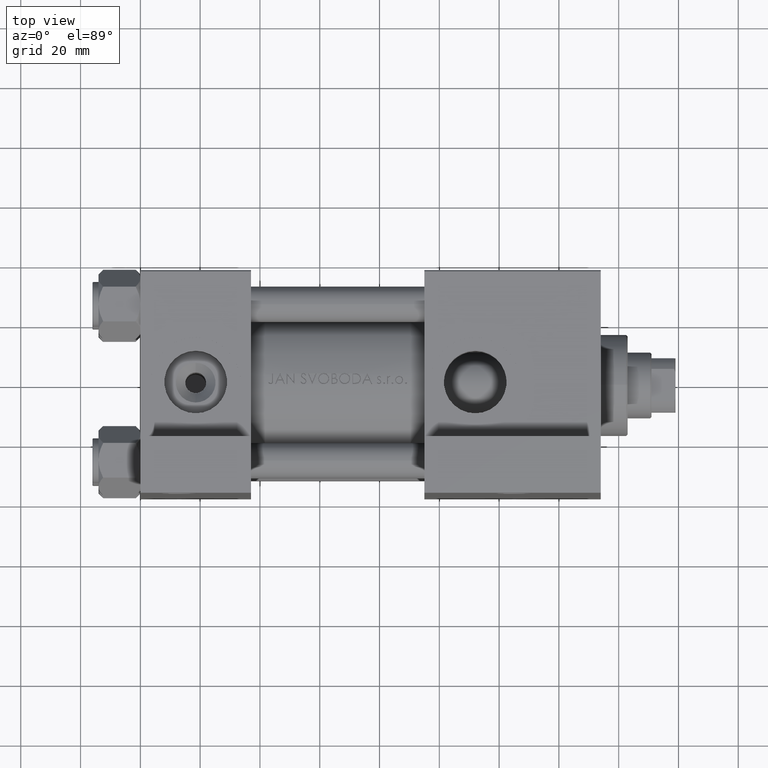
[diagram: clean part render]
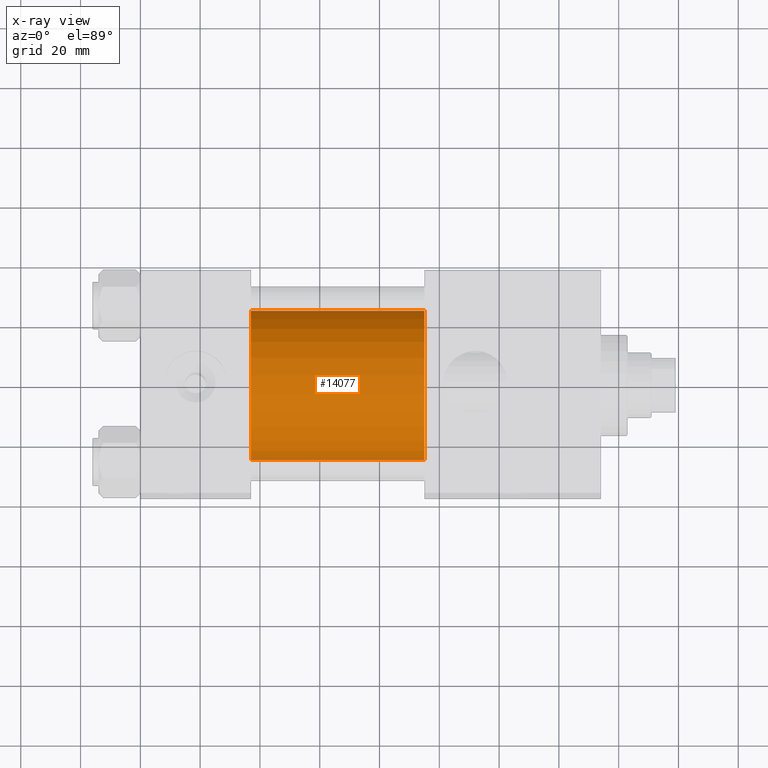
[diagram: x-ray — body ghosted, one internal face saturated and labeled with its STEP entity id]
A machine part, top view, then the same camera in x-ray: the body is ghosted and one INTERNAL B-rep face — a face not visible from any outside direction — is saturated and labeled: STEP entity #14077.
In plain terms, the highlighted cylindrical surface (partial cylindrical patch) has radius 25 mm, axis along (-1, -0, 0).
Its self-contained STEP definition (entity closure, byte-faithful):
#1201 = CIRCLE ( 'NONE', #15588, 25.00000000000000000 ) ;
#1220 = DIRECTION ( 'NONE',  ( 0.000000000000000000, 0.000000000000000000, -1.000000000000000000 ) ) ;
#2783 = ORIENTED_EDGE ( 'NONE', *, *, #7251, .T. ) ;
#3173 = CARTESIAN_POINT ( 'NONE',  ( 37.00000000000000000, 3.061616997868382254E-15, -25.50000000000000355 ) ) ;
#4014 = AXIS2_PLACEMENT_3D ( 'NONE', #12486, #40051, #1220 ) ;
#7251 = EDGE_CURVE ( 'NONE', #15583, #21140, #39241, .T. ) ;
#8915 = AXIS2_PLACEMENT_3D ( 'NONE', #35025, #39048, #30991 ) ;
#9479 = DIRECTION ( 'NONE',  ( -1.000000000000000000, -0.000000000000000000, -0.000000000000000000 ) ) ;
#11170 = VECTOR ( 'NONE', #9479, 1000.000000000000000 ) ;
#12486 = CARTESIAN_POINT ( 'NONE',  ( 95.00000000000000000, 0.000000000000000000, -0.5000000000000004441 ) ) ;
#14077 = ADVANCED_FACE ( 'NONE', ( #43075 ), #42830, .F. ) ;
#15583 = VERTEX_POINT ( 'NONE', #20645 ) ;
#15588 = AXIS2_PLACEMENT_3D ( 'NONE', #46583, #15977, #28182 ) ;
#15977 = DIRECTION ( 'NONE',  ( 1.000000000000000000, 0.000000000000000000, 0.000000000000000000 ) ) ;
#17240 = CARTESIAN_POINT ( 'NONE',  ( 95.00000000000000000, 0.000000000000000000, 24.50000000000000000 ) ) ;
#19542 = VECTOR ( 'NONE', #39388, 1000.000000000000000 ) ;
#20645 = CARTESIAN_POINT ( 'NONE',  ( 95.00000000000000000, 0.000000000000000000, 24.50000000000000000 ) ) ;
#21140 = VERTEX_POINT ( 'NONE', #21698 ) ;
#21698 = CARTESIAN_POINT ( 'NONE',  ( 95.00000000000000000, 3.061616997868382254E-15, -25.50000000000000355 ) ) ;
#24985 = LINE ( 'NONE', #17240, #11170 ) ;
#26459 = ORIENTED_EDGE ( 'NONE', *, *, #32401, .F. ) ;
#28182 = DIRECTION ( 'NONE',  ( 0.000000000000000000, 0.000000000000000000, -1.000000000000000000 ) ) ;
#29678 = EDGE_LOOP ( 'NONE', ( #2783, #48855, #35808, #26459 ) ) ;
#30991 = DIRECTION ( 'NONE',  ( 0.000000000000000000, 0.000000000000000000, 1.000000000000000000 ) ) ;
#32343 = CARTESIAN_POINT ( 'NONE',  ( 95.00000000000000000, 3.061616997868382254E-15, -25.50000000000000355 ) ) ;
#32401 = EDGE_CURVE ( 'NONE', #15583, #42325, #24985, .T. ) ;
#35025 = CARTESIAN_POINT ( 'NONE',  ( 95.00000000000000000, 0.000000000000000000, -0.5000000000000004441 ) ) ;
#35111 = LINE ( 'NONE', #32343, #19542 ) ;
#35367 = CARTESIAN_POINT ( 'NONE',  ( 37.00000000000000000, 0.000000000000000000, 24.50000000000000000 ) ) ;
#35808 = ORIENTED_EDGE ( 'NONE', *, *, #48765, .F. ) ;
#39048 = DIRECTION ( 'NONE',  ( -1.000000000000000000, -0.000000000000000000, -0.000000000000000000 ) ) ;
#39241 = CIRCLE ( 'NONE', #4014, 25.00000000000000000 ) ;
#39388 = DIRECTION ( 'NONE',  ( -1.000000000000000000, -0.000000000000000000, -0.000000000000000000 ) ) ;
#40051 = DIRECTION ( 'NONE',  ( 1.000000000000000000, 0.000000000000000000, 0.000000000000000000 ) ) ;
#42325 = VERTEX_POINT ( 'NONE', #35367 ) ;
#42830 = CYLINDRICAL_SURFACE ( 'NONE', #8915, 25.00000000000000000 ) ;
#43075 = FACE_OUTER_BOUND ( 'NONE', #29678, .T. ) ;
#46455 = EDGE_CURVE ( 'NONE', #21140, #47860, #35111, .T. ) ;
#46583 = CARTESIAN_POINT ( 'NONE',  ( 37.00000000000000000, 0.000000000000000000, -0.5000000000000004441 ) ) ;
#47860 = VERTEX_POINT ( 'NONE', #3173 ) ;
#48765 = EDGE_CURVE ( 'NONE', #42325, #47860, #1201, .T. ) ;
#48855 = ORIENTED_EDGE ( 'NONE', *, *, #46455, .T. ) ;